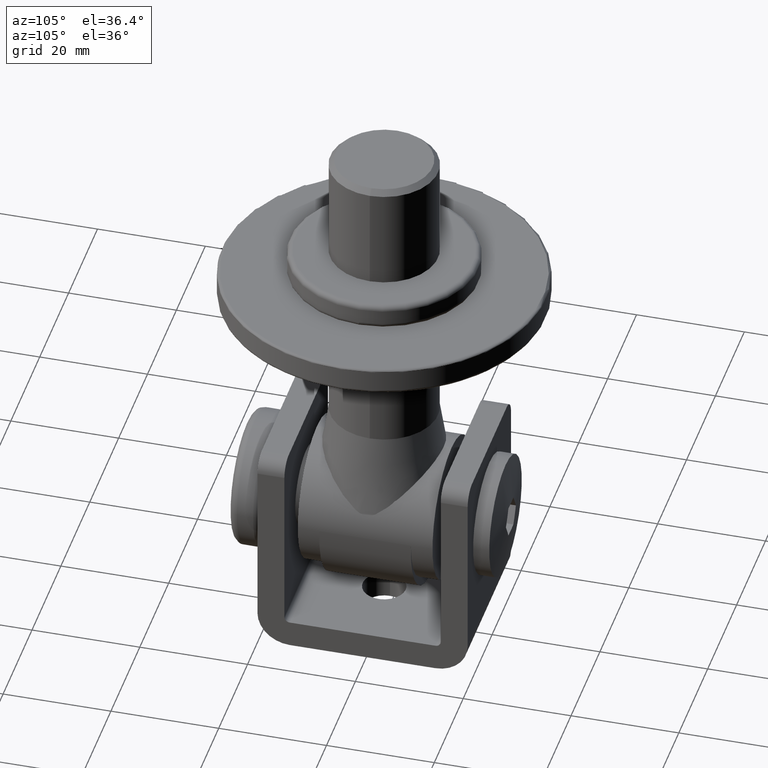
[diagram: clean part render]
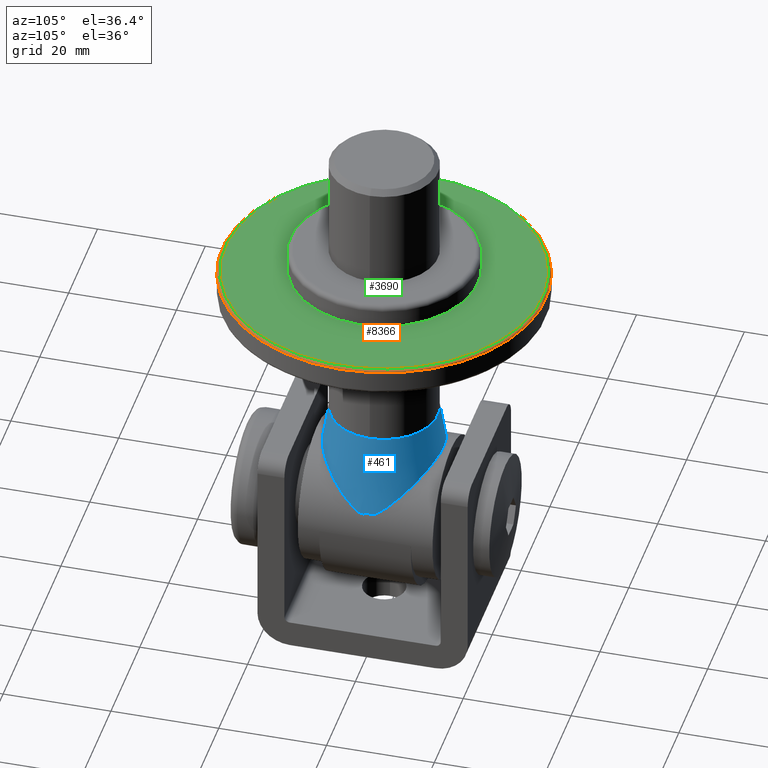
[diagram: same view with three faces highlighted in distinct colors, each labeled with its STEP entity id]
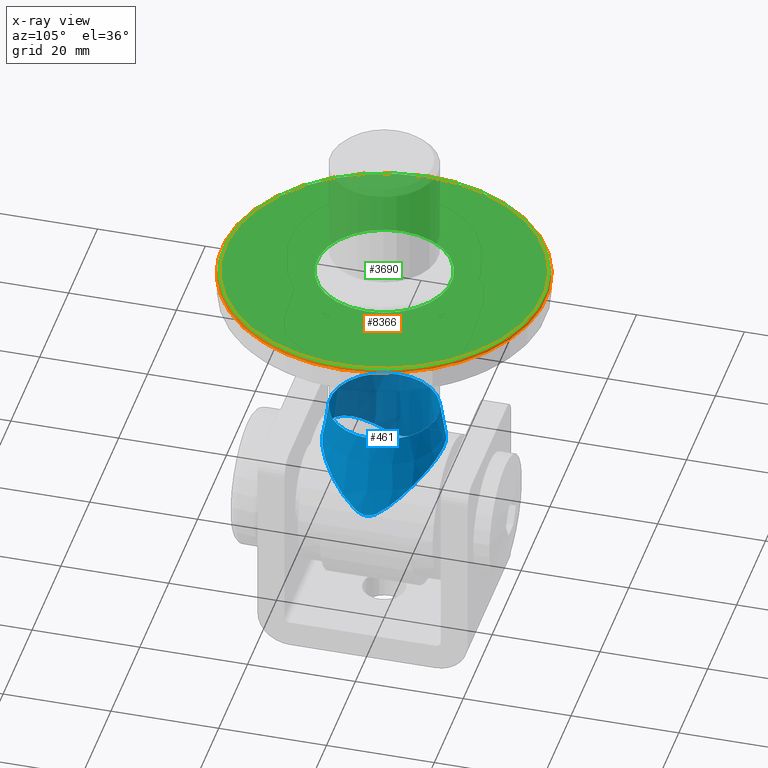
[diagram: x-ray of the same camera — body ghosted, the three highlighted faces saturated]
A machine part, auxiliary view with three faces highlighted in distinct colors.
The next image is the same camera in x-ray (body ghosted, the three faces saturated) — at least one of them is partly hidden behind the body in this view.
Their STEP definitions:

[orange] entity #8366 — the highlighted toroidal blend (fillet) surface has major radius 29.5 mm and minor (blend) radius 0.5 mm.
#1061 = FACE_OUTER_BOUND ( 'NONE', #3507, .T. ) ;
#1101 = AXIS2_PLACEMENT_3D ( 'NONE', #9602, #13337, #5921 ) ;
#1142 = EDGE_LOOP ( 'NONE', ( #5523 ) ) ;
#1540 = CARTESIAN_POINT ( 'NONE',  ( 29.50000000000000000, 0.000000000000000000, 0.000000000000000000 ) ) ;
#1873 = DIRECTION ( 'NONE',  ( 0.000000000000000000, 0.000000000000000000, 1.000000000000000000 ) ) ;
#1941 = CARTESIAN_POINT ( 'NONE',  ( 0.000000000000000000, 0.000000000000000000, 0.4999999999999995559 ) ) ;
#2353 = ORIENTED_EDGE ( 'NONE', *, *, #9239, .F. ) ;
#3076 = DIRECTION ( 'NONE',  ( 1.000000000000000000, 0.000000000000000000, 0.000000000000000000 ) ) ;
#3507 = EDGE_LOOP ( 'NONE', ( #2353 ) ) ;
#5399 = CIRCLE ( 'NONE', #1101, 29.50000000000000000 ) ;
#5512 = DIRECTION ( 'NONE',  ( 0.000000000000000000, 0.000000000000000000, 1.000000000000000000 ) ) ;
#5523 = ORIENTED_EDGE ( 'NONE', *, *, #12930, .F. ) ;
#5921 = DIRECTION ( 'NONE',  ( 1.000000000000000000, 0.000000000000000000, 0.000000000000000000 ) ) ;
#6137 = FACE_OUTER_BOUND ( 'NONE', #1142, .T. ) ;
#7054 = AXIS2_PLACEMENT_3D ( 'NONE', #7834, #1873, #3076 ) ;
#7798 = DIRECTION ( 'NONE',  ( 1.000000000000000000, 0.000000000000000000, 0.000000000000000000 ) ) ;
#7834 = CARTESIAN_POINT ( 'NONE',  ( 0.000000000000000000, 0.000000000000000000, 0.4999999999999995559 ) ) ;
#8366 = ADVANCED_FACE ( 'NONE', ( #1061, #6137 ), #13523, .T. ) ;
#9239 = EDGE_CURVE ( 'NONE', #13139, #13139, #5399, .T. ) ;
#9602 = CARTESIAN_POINT ( 'NONE',  ( 0.000000000000000000, 0.000000000000000000, 0.000000000000000000 ) ) ;
#11733 = AXIS2_PLACEMENT_3D ( 'NONE', #1941, #5512, #7798 ) ;
#12930 = EDGE_CURVE ( 'NONE', #15623, #15623, #14230, .T. ) ;
#13139 = VERTEX_POINT ( 'NONE', #1540 ) ;
#13337 = DIRECTION ( 'NONE',  ( -0.000000000000000000, -0.000000000000000000, -1.000000000000000000 ) ) ;
#13523 = TOROIDAL_SURFACE ( 'NONE', #7054, 29.50000000000000000, 0.5000000000000000000 ) ;
#13610 = CARTESIAN_POINT ( 'NONE',  ( 30.00000000000000000, 0.000000000000000000, 0.4999999999999995559 ) ) ;
#14230 = CIRCLE ( 'NONE', #11733, 30.00000000000000000 ) ;
#15623 = VERTEX_POINT ( 'NONE', #13610 ) ;

[blue] entity #461 — the highlighted conical surface has half-angle 9 deg.
#44 = CARTESIAN_POINT ( 'NONE',  ( -12.38940019077504218, -0.9450959868485966364, 4.697767867618234838 ) ) ;
#97 = CARTESIAN_POINT ( 'NONE',  ( -7.678569844979863390, 8.510407735315702382, 10.80439172791563429 ) ) ;
#144 = CARTESIAN_POINT ( 'NONE',  ( -2.065902802032952401, -10.90782309293001617, 13.09476974513984437 ) ) ;
#195 = CARTESIAN_POINT ( 'NONE',  ( -0.3605705342987161610, -11.07114699701680216, 13.25197567886256600 ) ) ;
#249 = CARTESIAN_POINT ( 'NONE',  ( -11.90703073471843965, -2.866991499017235157, 5.812905928287452006 ) ) ;
#297 = CARTESIAN_POINT ( 'NONE',  ( -11.54718009788447297, -3.754965510721123945, 6.504450450589952304 ) ) ;
#343 = CARTESIAN_POINT ( 'NONE',  ( 5.714375984242004769, -9.747276547765906685, 11.98133532480580854 ) ) ;
#461 = ADVANCED_FACE ( 'NONE', ( #4280, #4679 ), #13937, .T. ) ;
#689 = DIRECTION ( 'NONE',  ( -1.000000000000000000, 0.000000000000000000, 0.000000000000000000 ) ) ;
#1095 = CARTESIAN_POINT ( 'NONE',  ( -4.218565618293727226, 10.35885334058958662, 12.56730575939826977 ) ) ;
#1157 = CARTESIAN_POINT ( 'NONE',  ( 2.091732249781682373, 10.90363935195005318, 13.09074413129591541 ) ) ;
#1211 = CARTESIAN_POINT ( 'NONE',  ( -12.04944131422512754, -2.443979105749907621, 5.511212572115575803 ) ) ;
#1255 = CARTESIAN_POINT ( 'NONE',  ( -12.25242359596147246, -1.734436583907696283, 5.047619219784628797 ) ) ;
#1305 = CARTESIAN_POINT ( 'NONE',  ( 12.37364955450227377, -1.055443329401793751, 4.739586499570237699 ) ) ;
#1363 = CARTESIAN_POINT ( 'NONE',  ( -4.102405693558864641, -10.41903253631562087, 12.62483136927824035 ) ) ;
#1417 = CARTESIAN_POINT ( 'NONE',  ( 12.43905276868622600, -0.4315000723533463090, 4.564588116277159990 ) ) ;
#1519 = CARTESIAN_POINT ( 'NONE',  ( 10.58241531409850467, -5.461683115677251621, 7.979659242804925334 ) ) ;
#1690 = EDGE_CURVE ( 'NONE', #8320, #8320, #7330, .T. ) ;
#2266 = CARTESIAN_POINT ( 'NONE',  ( 3.342977604332900032, 10.65274451796973665, 12.84946316389401844 ) ) ;
#2328 = CARTESIAN_POINT ( 'NONE',  ( -11.87522093231435605, 2.968523041211703628, 5.884102766514427429 ) ) ;
#2382 = CARTESIAN_POINT ( 'NONE',  ( -12.43234973556715950, -0.5286982998661404753, 4.582896472510175734 ) ) ;
#2432 = CARTESIAN_POINT ( 'NONE',  ( -11.61154451951777844, 3.613257273047850493, 6.388706553711501535 ) ) ;
#2489 = CARTESIAN_POINT ( 'NONE',  ( -7.370841807226546472, 8.734718416845902667, 11.01703251288188667 ) ) ;
#2534 = CARTESIAN_POINT ( 'NONE',  ( 12.44908607744249629, -0.2174998791016695687, 4.536822222670308768 ) ) ;
#2579 = CARTESIAN_POINT ( 'NONE',  ( -8.147575667827476664, -8.140935191169559104, 10.45528001558904485 ) ) ;
#2627 = CARTESIAN_POINT ( 'NONE',  ( -6.295878708168994642, -9.434890903855205124, 11.68268972766824909 ) ) ;
#2680 = CARTESIAN_POINT ( 'NONE',  ( 12.13004625854768470, -2.179735962629325119, 5.332983637055148662 ) ) ;
#2703 = CARTESIAN_POINT ( 'NONE',  ( -12.04944131422512399, -2.443979105749907177, 5.511212572115574915 ) ) ;
#2729 = CARTESIAN_POINT ( 'NONE',  ( 12.26735124566716451, -1.634870081157472121, 5.008769570787324099 ) ) ;
#3002 = ORIENTED_EDGE ( 'NONE', *, *, #1690, .F. ) ;
#3041 = CARTESIAN_POINT ( 'NONE',  ( 0.000000000000000000, 0.000000000000000000, 19.99999999999999645 ) ) ;
#3200 = DIRECTION ( 'NONE',  ( -1.000000000000000000, 0.000000000000000000, 0.000000000000000000 ) ) ;
#3468 = CARTESIAN_POINT ( 'NONE',  ( 4.136373907530034089, 10.40775834085021323, 12.61400384180289436 ) ) ;
#3521 = CARTESIAN_POINT ( 'NONE',  ( -5.727563724226415687, 9.740889900085210940, 11.97522650413015022 ) ) ;
#3574 = CARTESIAN_POINT ( 'NONE',  ( 8.471330552745468978, 7.863859100885933984, 10.19426876784313585 ) ) ;
#3626 = CARTESIAN_POINT ( 'NONE',  ( -12.35960155464896459, -1.147912052011276884, 4.776212971698613252 ) ) ;
#3673 = CARTESIAN_POINT ( 'NONE',  ( 10.56608464701072947, 5.485861020792607512, 8.001337366032322151 ) ) ;
#3716 = CARTESIAN_POINT ( 'NONE',  ( 8.513202047799987682, -7.826532301189477181, 10.15918574283575992 ) ) ;
#3774 = CARTESIAN_POINT ( 'NONE',  ( -11.93675474231753597, -2.783706569775829642, 5.751599407371186246 ) ) ;
#3823 = CARTESIAN_POINT ( 'NONE',  ( -11.39837224192857512, -4.064628147213992015, 6.762611934688211868 ) ) ;
#3870 = CARTESIAN_POINT ( 'NONE',  ( 1.778020029583129658, -10.95193222221255169, 13.13722163743800664 ) ) ;
#3921 = CARTESIAN_POINT ( 'NONE',  ( 12.44922920611978512, 0.2128177828037224606, 4.536429456872657973 ) ) ;
#4280 = FACE_BOUND ( 'NONE', #11438, .T. ) ;
#4671 = CARTESIAN_POINT ( 'NONE',  ( 11.85004029408889892, 3.035457387847859234, 5.934801708442859258 ) ) ;
#4679 = FACE_OUTER_BOUND ( 'NONE', #4937, .T. ) ;
#4718 = AXIS2_PLACEMENT_3D ( 'NONE', #3041, #11498, #3200 ) ;
#4728 = CARTESIAN_POINT ( 'NONE',  ( 11.43345149029320851, 3.993691015043217440, 6.703163841702037828 ) ) ;
#4784 = CARTESIAN_POINT ( 'NONE',  ( -11.14972509917480537, 4.537632892792196948, 7.165082879632977964 ) ) ;
#4834 = CARTESIAN_POINT ( 'NONE',  ( 0.8073144705918852138, 11.05076683691005890, 13.23235069466727509 ) ) ;
#4888 = CARTESIAN_POINT ( 'NONE',  ( 10.93762129030772101, 4.904758452361164700, 7.485451551020039673 ) ) ;
#4937 = EDGE_LOOP ( 'NONE', ( #3002 ) ) ;
#4945 = CARTESIAN_POINT ( 'NONE',  ( 11.58778942415911928, -3.666027097855064198, 6.431687443820482741 ) ) ;
#4999 = CARTESIAN_POINT ( 'NONE',  ( -5.606879298609790396, -9.800687652764377589, 12.03241472473739115 ) ) ;
#5044 = CARTESIAN_POINT ( 'NONE',  ( 7.656422536008271607, -8.526961295977587341, 10.82006743645341551 ) ) ;
#5094 = CARTESIAN_POINT ( 'NONE',  ( -10.32757003972161591, -5.824759937809287358, 8.307265245422568611 ) ) ;
#5146 = CARTESIAN_POINT ( 'NONE',  ( 0.4935159095814382058, -11.06669657805353779, 13.24769083842008044 ) ) ;
#5522 = AXIS2_PLACEMENT_3D ( 'NONE', #11777, #5736, #689 ) ;
#5736 = DIRECTION ( 'NONE',  ( 0.000000000000000000, 0.000000000000000000, -1.000000000000000000 ) ) ;
#5869 = CARTESIAN_POINT ( 'NONE',  ( -8.260856672387218325, 8.046213709757083166, 10.36598102027790169 ) ) ;
#5918 = CARTESIAN_POINT ( 'NONE',  ( 12.37402581199011564, 1.053235304118086635, 4.738623747922940943 ) ) ;
#5973 = CARTESIAN_POINT ( 'NONE',  ( -12.15881103175609645, -2.095284033789403200, 5.272092056312842168 ) ) ;
#6028 = CARTESIAN_POINT ( 'NONE',  ( 5.646616797633721596, 9.781534172574522401, 12.01409175778985983 ) ) ;
#6083 = CARTESIAN_POINT ( 'NONE',  ( 11.58117321855477933, 3.680908940000977569, 6.443737515750960654 ) ) ;
#6126 = CARTESIAN_POINT ( 'NONE',  ( 11.44185980125263669, -3.976296856883141384, 6.688675677567544220 ) ) ;
#6178 = CARTESIAN_POINT ( 'NONE',  ( 12.43896462610872256, 0.4320115415109923029, 4.564820849558514304 ) ) ;
#6238 = CARTESIAN_POINT ( 'NONE',  ( 3.022270123491713090, -10.71311339251761829, 12.90752815740245651 ) ) ;
#6285 = CARTESIAN_POINT ( 'NONE',  ( -10.52621246810937805, -5.544130562155239694, 8.053692246306809466 ) ) ;
#6340 = CARTESIAN_POINT ( 'NONE',  ( -7.253104104653994355, -8.816685920956803812, 11.09482707581721428 ) ) ;
#6739 = VERTEX_POINT ( 'NONE', #12493 ) ;
#7103 = CARTESIAN_POINT ( 'NONE',  ( -3.022449177636787443, 10.71313894833050995, 12.90755257857270877 ) ) ;
#7161 = CARTESIAN_POINT ( 'NONE',  ( 12.40125092430916887, 0.8506747611117246866, 4.666305376898222335 ) ) ;
#7222 = CARTESIAN_POINT ( 'NONE',  ( -12.41107427380013206, 0.7647038251316934376, 4.640044472082903937 ) ) ;
#7276 = CARTESIAN_POINT ( 'NONE',  ( 10.36819478376577841, 5.768753718788321549, 8.256542968393139503 ) ) ;
#7311 = CIRCLE ( 'NONE', #4718, 10.00000000000000000 ) ;
#7321 = CARTESIAN_POINT ( 'NONE',  ( 11.97165430668844621, 2.701895988781918057, 5.684002064051216330 ) ) ;
#7330 = B_SPLINE_CURVE_WITH_KNOTS ( 'NONE', 3,
 ( #1211, #5973, #1255, #3626, #44, #2382, #9541, #14447, #9653, #7222, #9706, #12071, #8480, #10827, #2328, #2432, #8540, #4784, #14498, #15696, #8425, #14341, #8371, #9600, #5869, #97, #2489, #10877, #3521, #12021, #1095, #13228, #7103, #10767, #10929, #11970, #9488, #13116, #4834, #13281, #1157, #2266, #3468, #6028, #10712, #12129, #11918, #15637, #3574, #13169, #14550, #7276, #3673, #4888, #13333, #4728, #6083, #4671, #7321, #15580, #8316, #5918, #7161, #6178, #3921, #2534, #1417, #13485, #1305, #14654, #2729, #12374, #2680, #9753, #8745, #4945, #6126, #13531, #12182, #1519, #10984, #12280, #13379, #3716, #11079, #5044, #11131, #9957, #343, #9909, #8592, #7572, #6238, #14599, #3870, #13432, #5146, #195, #7367, #13588, #144, #12330, #1363, #4999, #2627, #6340, #9806, #2579, #12231, #8645, #14762, #5094, #6285, #9859, #11032, #3823, #297, #14703, #7466, #249, #3774, #7518, #7416, #8695 ),
 .UNSPECIFIED., .T., .F.,
 ( 4, 2, 2, 2, 2, 2, 2, 2, 2, 2, 2, 2, 2, 2, 2, 2, 2, 2, 2, 2, 2, 2, 2, 2, 2, 2, 2, 2, 2, 2, 2, 2, 2, 2, 2, 2, 2, 2, 2, 2, 2, 2, 2, 2, 2, 2, 2, 2, 2, 2, 2, 2, 2, 2, 2, 2, 2, 2, 2, 2, 2, 4 ),
 ( 0.000000000000000000, 0.001304490755350823719, 0.001956736133026236446, 0.002608981510701648739, 0.003261226888377061033, 0.003913472266052473759, 0.005217963021403297479, 0.006522453776754121198, 0.007826944532104945784, 0.009131435287455769503, 0.01043592604280659322, 0.01304490755350823719, 0.01434939830885906091, 0.01565388906420988810, 0.01826287057491153554, 0.01956736133026236099, 0.02087185208561318644, 0.02217634284096400843, 0.02348083359631483388, 0.02478532435166565587, 0.02608981510701647785, 0.02869879661771812529, 0.03130777812841977620, 0.03261226888377059818, 0.03391675963912142711, 0.03652574114982307107, 0.03783023190517389306, 0.03913472266052470810, 0.04043921341587553009, 0.04174370417122634513, 0.04304819492657716712, 0.04370044030425257464, 0.04435268568192798910, 0.04500493105960340356, 0.04565717643727881109, 0.04630942181495422555, 0.04696166719262964001, 0.04826615794798046200, 0.04957064870333128398, 0.05087513945868210596, 0.05217963021403292795, 0.05478861172473457886, 0.05609310248008540084, 0.05739759323543622282, 0.06000657474613787373, 0.06131106550148869572, 0.06261555625683952464, 0.06392004701219035356, 0.06522453776754116861, 0.06652902852289199753, 0.06783351927824282646, 0.07044250078894447042, 0.07305148229964611439, 0.07435597305499694332, 0.07566046381034775836, 0.07826944532104941621, 0.07957393607640023125, 0.08087842683175106018, 0.08218291758710187522, 0.08283516296477728968, 0.08316128565361499692, 0.08348740834245270415 ),
 .UNSPECIFIED. ) ;
#7367 = CARTESIAN_POINT ( 'NONE',  ( -0.7869457228292171536, -11.05197811525705731, 13.23351698327866721 ) ) ;
#7416 = CARTESIAN_POINT ( 'NONE',  ( -12.02209888484238576, -2.531152873740033726, 5.570992701066258768 ) ) ;
#7466 = CARTESIAN_POINT ( 'NONE',  ( -11.81529786281737593, -3.114500548580712458, 5.998354891759820617 ) ) ;
#7518 = CARTESIAN_POINT ( 'NONE',  ( -11.99443996270405144, -2.615304416063699566, 5.630312558126835398 ) ) ;
#7572 = CARTESIAN_POINT ( 'NONE',  ( 3.424341790369364702, -10.60794979226973211, 12.80645272851149130 ) ) ;
#7664 = EDGE_CURVE ( 'NONE', #6739, #6739, #7311, .T. ) ;
#8316 = CARTESIAN_POINT ( 'NONE',  ( 12.27289714695733913, 1.644885356444857782, 4.997276748481435327 ) ) ;
#8320 = VERTEX_POINT ( 'NONE', #2703 ) ;
#8371 = CARTESIAN_POINT ( 'NONE',  ( -9.319809800031260139, 7.063064672325504390, 9.444136731027265697 ) ) ;
#8425 = CARTESIAN_POINT ( 'NONE',  ( -10.41224743186162094, 5.707197921856893785, 8.200893498295044992 ) ) ;
#8480 = CARTESIAN_POINT ( 'NONE',  ( -12.20089009106728284, 1.936586131489348883, 5.173506723991851963 ) ) ;
#8540 = CARTESIAN_POINT ( 'NONE',  ( -11.46638223617596175, 3.925773145085638571, 6.646567600881421178 ) ) ;
#8592 = CARTESIAN_POINT ( 'NONE',  ( 4.211310238672060891, -10.36130078671356358, 12.56965450036417309 ) ) ;
#8645 = CARTESIAN_POINT ( 'NONE',  ( -9.222621617883616452, -7.165247550517245045, 9.539298065904301183 ) ) ;
#8695 = CARTESIAN_POINT ( 'NONE',  ( -12.04944131422512754, -2.443979105749907621, 5.511212572115575803 ) ) ;
#8745 = CARTESIAN_POINT ( 'NONE',  ( 11.85322307073842474, -3.026777856902132857, 5.928285582608718407 ) ) ;
#9321 = ORIENTED_EDGE ( 'NONE', *, *, #7664, .T. ) ;
#9488 = CARTESIAN_POINT ( 'NONE',  ( -0.4802160118533071453, 11.06728703845489292, 13.24825933012768431 ) ) ;
#9541 = CARTESIAN_POINT ( 'NONE',  ( -12.44566829308627831, -0.3102667863407074789, 4.546197433263228227 ) ) ;
#9600 = CARTESIAN_POINT ( 'NONE',  ( -8.536193463402771187, 7.806032518295840994, 10.13991713383960835 ) ) ;
#9653 = CARTESIAN_POINT ( 'NONE',  ( -12.44417517392676054, 0.3388159792444521701, 4.550525417280464779 ) ) ;
#9706 = CARTESIAN_POINT ( 'NONE',  ( -12.38546751774563326, 0.9718553463767128919, 4.708547479103708078 ) ) ;
#9753 = CARTESIAN_POINT ( 'NONE',  ( 11.97283569065718112, -2.698176977561165479, 5.681430484916966783 ) ) ;
#9806 = CARTESIAN_POINT ( 'NONE',  ( -7.559304649607143212, -8.598882528949728155, 10.88819464749678723 ) ) ;
#9859 = CARTESIAN_POINT ( 'NONE',  ( -10.89952340136787257, -4.967660828330613398, 7.540788907338403568 ) ) ;
#9909 = CARTESIAN_POINT ( 'NONE',  ( 4.598548766574191760, -10.21873217903371511, 12.43289373014662758 ) ) ;
#9957 = CARTESIAN_POINT ( 'NONE',  ( 6.398307299495683331, -9.376428972431961384, 11.62690344932840780 ) ) ;
#10712 = CARTESIAN_POINT ( 'NONE',  ( 6.337232107650971891, 9.411626398544324701, 11.66048193712415504 ) ) ;
#10767 = CARTESIAN_POINT ( 'NONE',  ( -2.196071884936621199, 10.88575457473725727, 13.07353742780458283 ) ) ;
#10827 = CARTESIAN_POINT ( 'NONE',  ( -11.99385841348210846, 2.636736501576296021, 5.636865369585930985 ) ) ;
#10877 = CARTESIAN_POINT ( 'NONE',  ( -6.414396829536006095, 9.367437087833536680, 11.61831617152243190 ) ) ;
#10929 = CARTESIAN_POINT ( 'NONE',  ( -1.773828459039632710, 10.95262855492999421, 13.13789169018862779 ) ) ;
#10984 = CARTESIAN_POINT ( 'NONE',  ( 10.38627132701660827, -5.743486404035412995, 8.233699174192386394 ) ) ;
#11032 = CARTESIAN_POINT ( 'NONE',  ( -11.07461624087534879, -4.671022702595554854, 7.280706357359522762 ) ) ;
#11079 = CARTESIAN_POINT ( 'NONE',  ( 8.238205949362798819, -8.065290967052103355, 10.38396013644015703 ) ) ;
#11131 = CARTESIAN_POINT ( 'NONE',  ( 7.350240954313449926, -8.749135709501977942, 11.03071339230738168 ) ) ;
#11438 = EDGE_LOOP ( 'NONE', ( #9321 ) ) ;
#11498 = DIRECTION ( 'NONE',  ( 0.000000000000000000, 0.000000000000000000, -1.000000000000000000 ) ) ;
#11777 = CARTESIAN_POINT ( 'NONE',  ( 0.000000000000000000, 0.000000000000000000, 19.99999999999999645 ) ) ;
#11918 = CARTESIAN_POINT ( 'NONE',  ( 7.602068126450842733, 8.567456300826089333, 10.85841794699726570 ) ) ;
#11970 = CARTESIAN_POINT ( 'NONE',  ( -0.9107307532381764270, 11.04394154014979179, 13.22577918159579013 ) ) ;
#12021 = CARTESIAN_POINT ( 'NONE',  ( -4.608204381879374090, 10.21505102049978753, 12.42936387692072131 ) ) ;
#12071 = CARTESIAN_POINT ( 'NONE',  ( -12.29013637429143735, 1.565583893428060591, 4.954386731548424017 ) ) ;
#12129 = CARTESIAN_POINT ( 'NONE',  ( 7.295671274051868771, 8.787297415396599476, 11.06692789842938218 ) ) ;
#12182 = CARTESIAN_POINT ( 'NONE',  ( 10.95099532475717652, -4.882362333415176003, 7.465800486786064560 ) ) ;
#12231 = CARTESIAN_POINT ( 'NONE',  ( -8.428208108945414168, -7.901742784840352307, 10.22990334003756452 ) ) ;
#12280 = CARTESIAN_POINT ( 'NONE',  ( 9.761085334895016175, -6.567405613261589004, 8.983732507310792315 ) ) ;
#12330 = CARTESIAN_POINT ( 'NONE',  ( -3.310787795310446757, -10.66109273190805773, 12.85748732984530562 ) ) ;
#12374 = CARTESIAN_POINT ( 'NONE',  ( 12.17872212692593159, -2.002578241590725394, 5.220575308616989041 ) ) ;
#12493 = CARTESIAN_POINT ( 'NONE',  ( -10.00000000000000000, 0.000000000000000000, 19.99999999999999645 ) ) ;
#13116 = CARTESIAN_POINT ( 'NONE',  ( 0.3788066764698968525, 11.07070137226429907, 13.25154663419395895 ) ) ;
#13169 = CARTESIAN_POINT ( 'NONE',  ( 9.265776591502813631, 7.120493337394739441, 9.497584552714517514 ) ) ;
#13228 = CARTESIAN_POINT ( 'NONE',  ( -3.426758983538745529, 10.60736358682316371, 12.80588898885162052 ) ) ;
#13281 = CARTESIAN_POINT ( 'NONE',  ( 1.662324088480906292, 10.96762176602372207, 13.15232071483754162 ) ) ;
#13333 = CARTESIAN_POINT ( 'NONE',  ( 11.11166989394626903, 4.605806275542726702, 7.224057768149246606 ) ) ;
#13379 = CARTESIAN_POINT ( 'NONE',  ( 9.295701549033751121, -7.088353112803710943, 9.467686568940928638 ) ) ;
#13432 = CARTESIAN_POINT ( 'NONE',  ( 0.9212270929771754213, -11.04307964070437187, 13.22494946001430449 ) ) ;
#13485 = CARTESIAN_POINT ( 'NONE',  ( 12.40090047350179603, -0.8540949121252390253, 4.667243929742928898 ) ) ;
#13531 = CARTESIAN_POINT ( 'NONE',  ( 11.12373627052473957, -4.584164973802003828, 7.205347279279255446 ) ) ;
#13588 = CARTESIAN_POINT ( 'NONE',  ( -1.638355257088583539, -10.97068302101821402, 13.15526690603327786 ) ) ;
#13937 = CONICAL_SURFACE ( 'NONE', #5522, 10.00000000000000000, 0.1570796326794897113 ) ;
#14341 = CARTESIAN_POINT ( 'NONE',  ( -9.786061217844240545, 6.538244676121119703, 8.956768884556078447 ) ) ;
#14447 = CARTESIAN_POINT ( 'NONE',  ( -12.45141452782716840, 0.1239216947709796818, 4.530435588324483120 ) ) ;
#14498 = CARTESIAN_POINT ( 'NONE',  ( -10.97764976113806590, 4.837709514358524032, 7.426631956561394965 ) ) ;
#14550 = CARTESIAN_POINT ( 'NONE',  ( 9.736716111093077330, 6.596413487264347175, 9.010478279431165305 ) ) ;
#14599 = CARTESIAN_POINT ( 'NONE',  ( 2.199910247215229653, -10.88501548616966375, 13.07282657797025038 ) ) ;
#14654 = CARTESIAN_POINT ( 'NONE',  ( 12.30696714799581315, -1.445553149900911105, 4.910136770263592076 ) ) ;
#14703 = CARTESIAN_POINT ( 'NONE',  ( -11.75073439707337464, -3.276399639654328677, 6.124004172004332780 ) ) ;
#14762 = CARTESIAN_POINT ( 'NONE',  ( -9.694248288801926350, -6.645653453853261006, 9.056019282648739122 ) ) ;
#15580 = CARTESIAN_POINT ( 'NONE',  ( 12.18281409422042394, 2.005897091355937967, 5.216073911348908965 ) ) ;
#15637 = CARTESIAN_POINT ( 'NONE',  ( 8.190376133962486094, 8.105461269702287197, 10.42182416350850538 ) ) ;
#15696 = CARTESIAN_POINT ( 'NONE',  ( -10.60867643475632249, 5.422797207948485188, 7.944787020372510611 ) ) ;

[green] entity #3690 — the highlighted planar face has unit normal (0, 0, -1).
#1101 = AXIS2_PLACEMENT_3D ( 'NONE', #9602, #13337, #5921 ) ;
#1540 = CARTESIAN_POINT ( 'NONE',  ( 29.50000000000000000, 0.000000000000000000, 0.000000000000000000 ) ) ;
#2204 = FACE_BOUND ( 'NONE', #10015, .T. ) ;
#3690 = ADVANCED_FACE ( 'NONE', ( #12211, #2204 ), #3725, .F. ) ;
#3725 = PLANE ( 'NONE',  #9371 ) ;
#4794 = DIRECTION ( 'NONE',  ( 1.000000000000000000, 0.000000000000000000, -0.000000000000000000 ) ) ;
#5399 = CIRCLE ( 'NONE', #1101, 29.50000000000000000 ) ;
#5921 = DIRECTION ( 'NONE',  ( 1.000000000000000000, 0.000000000000000000, 0.000000000000000000 ) ) ;
#5983 = DIRECTION ( 'NONE',  ( 0.000000000000000000, 0.000000000000000000, 1.000000000000000000 ) ) ;
#6114 = ORIENTED_EDGE ( 'NONE', *, *, #6359, .T. ) ;
#6359 = EDGE_CURVE ( 'NONE', #6559, #6559, #10354, .T. ) ;
#6559 = VERTEX_POINT ( 'NONE', #10090 ) ;
#6623 = AXIS2_PLACEMENT_3D ( 'NONE', #10368, #14423, #13137 ) ;
#9239 = EDGE_CURVE ( 'NONE', #13139, #13139, #5399, .T. ) ;
#9371 = AXIS2_PLACEMENT_3D ( 'NONE', #10937, #5983, #4794 ) ;
#9602 = CARTESIAN_POINT ( 'NONE',  ( 0.000000000000000000, 0.000000000000000000, 0.000000000000000000 ) ) ;
#10015 = EDGE_LOOP ( 'NONE', ( #6114 ) ) ;
#10090 = CARTESIAN_POINT ( 'NONE',  ( 12.50000000000000000, 0.000000000000000000, 0.000000000000000000 ) ) ;
#10354 = CIRCLE ( 'NONE', #6623, 12.50000000000000000 ) ;
#10368 = CARTESIAN_POINT ( 'NONE',  ( 0.000000000000000000, 0.000000000000000000, 0.000000000000000000 ) ) ;
#10937 = CARTESIAN_POINT ( 'NONE',  ( 0.000000000000000000, 0.000000000000000000, 0.000000000000000000 ) ) ;
#10998 = EDGE_LOOP ( 'NONE', ( #13040 ) ) ;
#12211 = FACE_OUTER_BOUND ( 'NONE', #10998, .T. ) ;
#13040 = ORIENTED_EDGE ( 'NONE', *, *, #9239, .T. ) ;
#13137 = DIRECTION ( 'NONE',  ( 1.000000000000000000, 0.000000000000000000, 0.000000000000000000 ) ) ;
#13139 = VERTEX_POINT ( 'NONE', #1540 ) ;
#13337 = DIRECTION ( 'NONE',  ( -0.000000000000000000, -0.000000000000000000, -1.000000000000000000 ) ) ;
#14423 = DIRECTION ( 'NONE',  ( 0.000000000000000000, 0.000000000000000000, 1.000000000000000000 ) ) ;